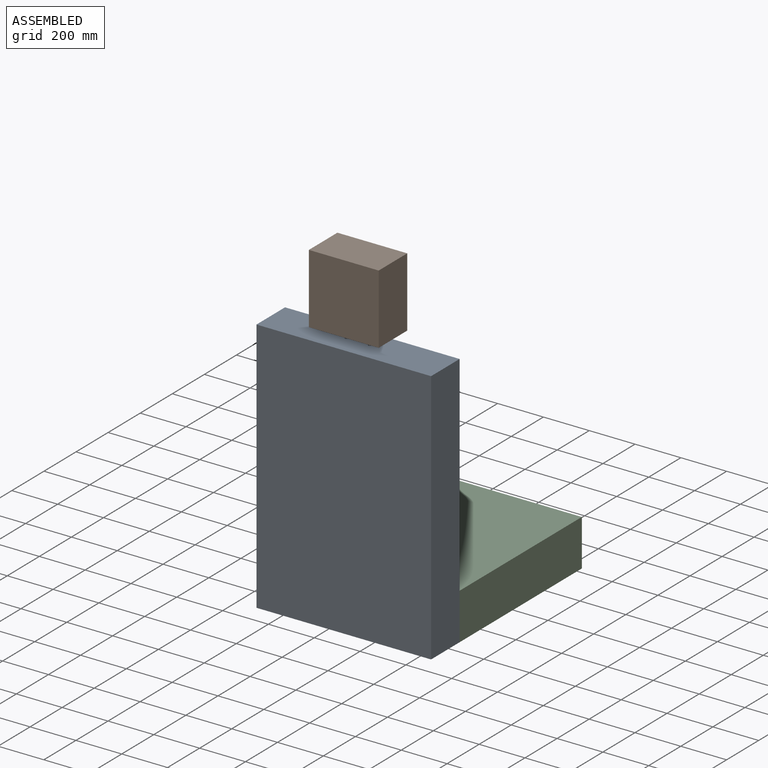
[diagram: assembled view]
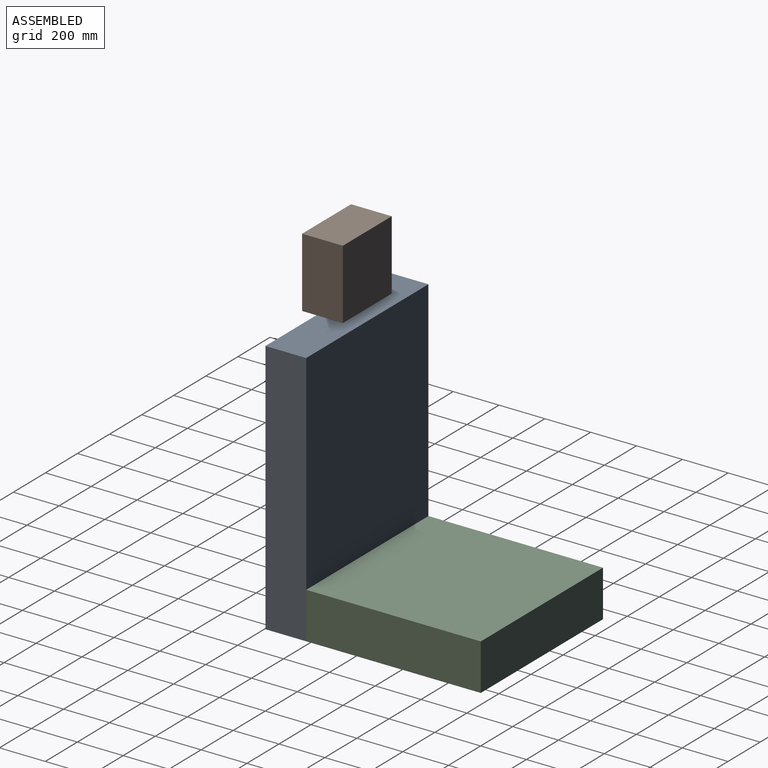
[diagram: assembled view, second angle]
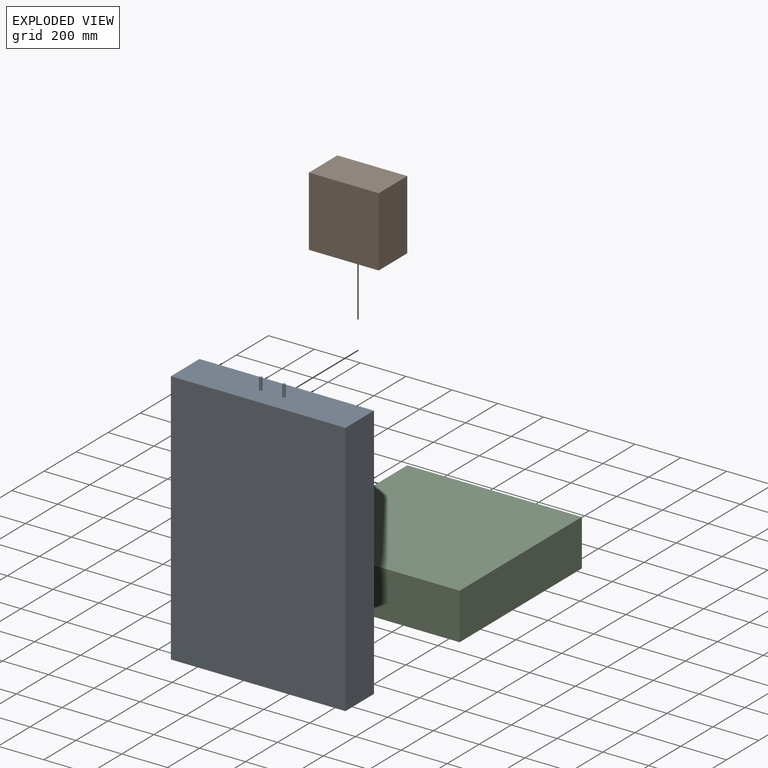
[diagram: exploded view]
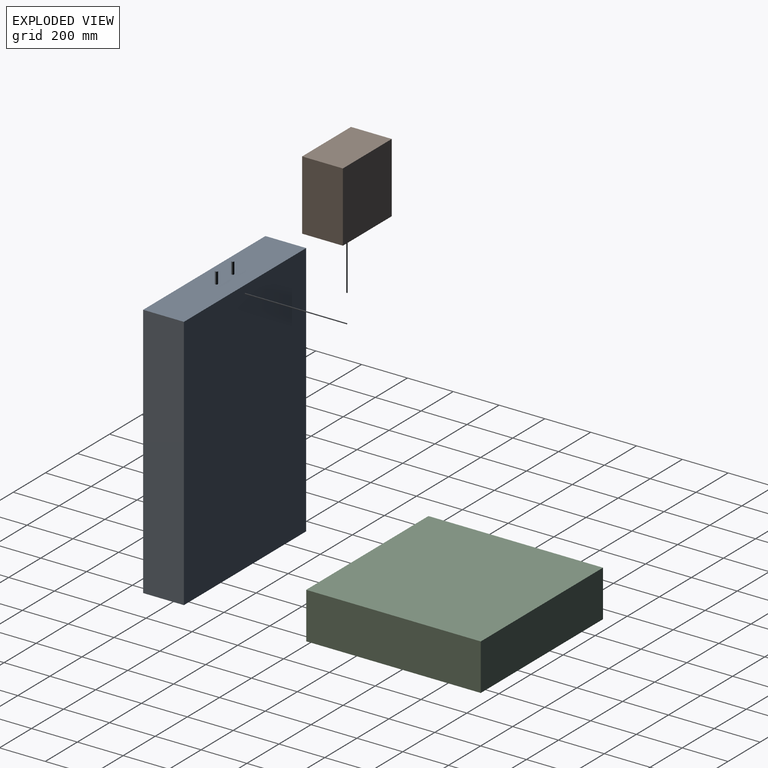
[diagram: exploded view, second angle]
ASSEMBLY  parts=3 mates=2
PART A: 10 faces, bbox 762x177.8x1168.4 mm
  f0: plane 762x177.8mm, normal (0,0,1), area 135250.1mm2, adj f1,f3,f4,f5,f6,f8
  f1: plane 1117.6x177.8mm, normal (-1,0,0), area 198709.3mm2, adj f0,f2,f4,f5
  f2: plane 762x177.8mm, normal (0,0,-1), area 135483.6mm2, adj f1,f3,f4,f5
  f3: plane 1117.6x177.8mm, normal (1,0,0), area 198709.3mm2, adj f0,f2,f4,f5
  f4: plane 1117.6x762mm, normal (0,-1,0), area 851611.2mm2, adj f0,f1,f2,f3
  f5: plane 1117.6x762mm, normal (0,1,0), area 851611.2mm2, adj f0,f1,f2,f3
  f6: cylinder r=6.1mm len=50.8mm, axis (0,0,-1), area 1945.8mm2, adj f0,f7
  f7: plane 12.19x12.19mm, normal (0,0,1), area 116.7mm2, adj f6
  f8: cylinder r=6.1mm len=50.8mm, axis (0,0,-1), area 1945.8mm2, adj f0,f9
  f9: plane 12.19x12.19mm, normal (0,0,1), area 116.7mm2, adj f8
PART B: 10 faces, bbox 304.8x177.8x304.8 mm
  f0: plane 304.8x177.8mm, normal (0,0,1), area 54193.4mm2, adj f1,f3,f4,f5
  f1: plane 304.8x177.8mm, normal (-1,0,0), area 54193.4mm2, adj f0,f2,f4,f5
  f2: plane 304.8x177.8mm, normal (0,0,-1), area 53940.1mm2, adj f1,f3,f4,f5,f7,f9
  f3: plane 304.8x177.8mm, normal (1,0,0), area 54193.4mm2, adj f0,f2,f4,f5
  f4: plane 304.8x304.8mm, normal (0,-1,0), area 92903mm2, adj f0,f1,f2,f3
  f5: plane 304.8x304.8mm, normal (0,1,0), area 92903mm2, adj f0,f1,f2,f3
  f6: cone r=0mm half-angle=59deg, axis (0,0,-1), area 147.8mm2, adj f7
  f7: cylinder r=6.35mm len=50.8mm, axis (0,0,-1), area 2026.8mm2, adj f2,f6
  f8: cone r=0mm half-angle=59deg, axis (0,0,-1), area 147.8mm2, adj f9
  f9: cylinder r=6.35mm len=50.8mm, axis (0,0,-1), area 2026.8mm2, adj f2,f8
PART C: 6 faces, bbox 762x762x203.2 mm
  f0: plane 762x203.2mm, normal (0,1,0), area 154838.4mm2, adj f1,f3,f4,f5
  f1: plane 762x203.2mm, normal (-1,0,0), area 154838.4mm2, adj f0,f2,f4,f5
  f2: plane 762x203.2mm, normal (0,-1,0), area 154838.4mm2, adj f1,f3,f4,f5
  f3: plane 762x203.2mm, normal (1,0,0), area 154838.4mm2, adj f0,f2,f4,f5
  f4: plane 762x762mm, normal (0,0,1), area 580644mm2, adj f0,f1,f2,f3
  f5: plane 762x762mm, normal (0,0,-1), area 580644mm2, adj f0,f1,f2,f3
PLACE A t=(-225.58,-983.16,1060.63)mm
PLACE B t=(-264.12,-983.16,1873.57)mm
PLACE C t=(-231.84,-739.45,607.68)mm
MATE fastened C.f2 <-> A.f5  axis (0,-1,0) through (-298.16,-983.16,709.28)mm
MATE slider A.f6 <-> B.f8  axis (0,0,1) through (-348.96,-1072.06,1776.08)mm
